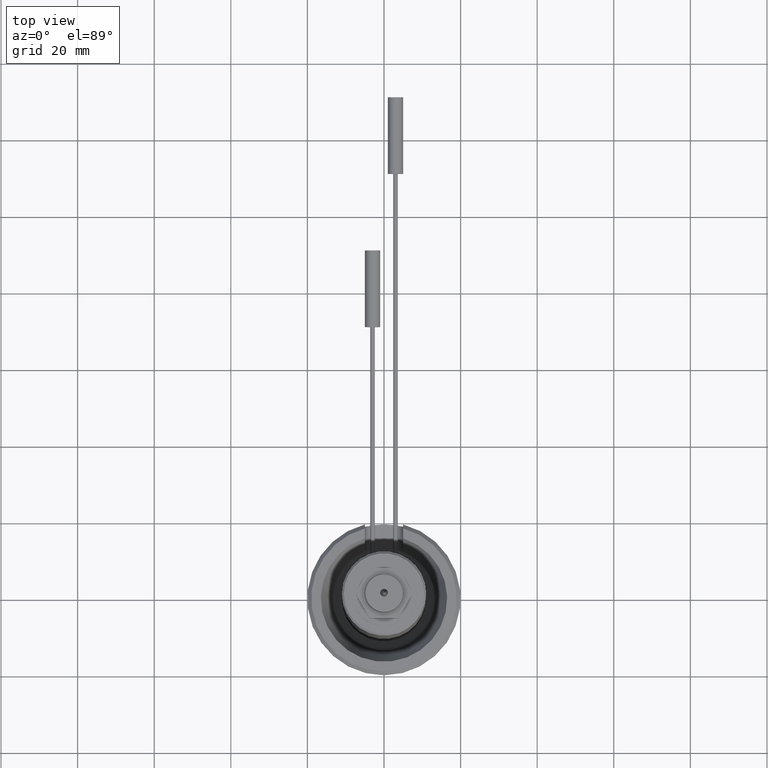
[diagram: clean part render]
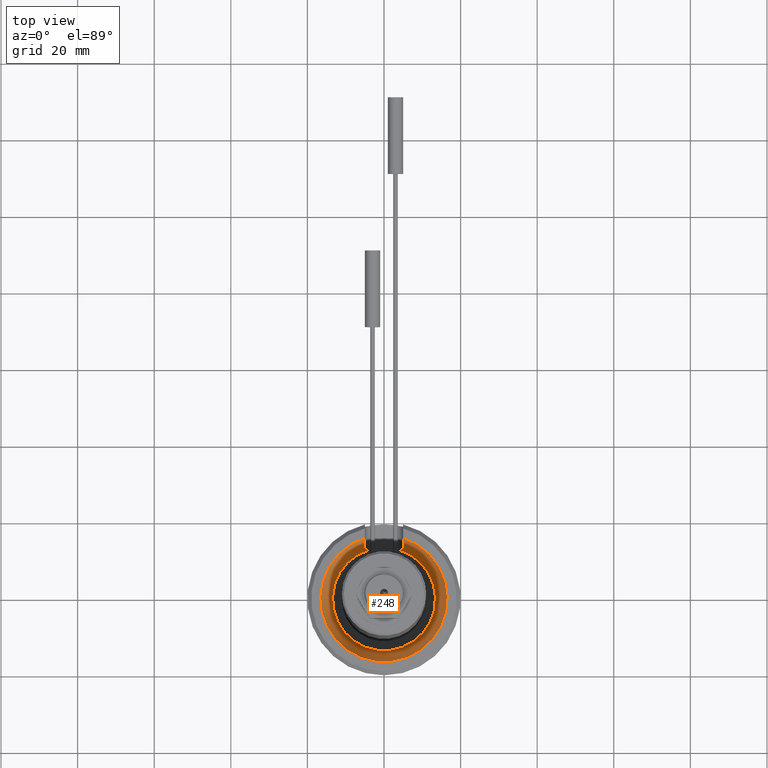
[diagram: same view with one face highlighted and labeled with its STEP entity id]
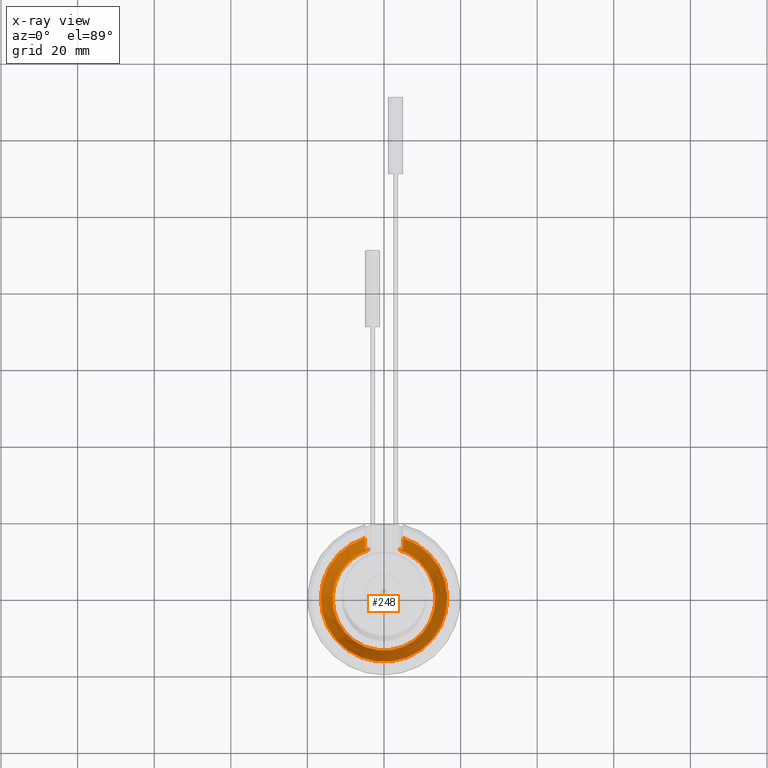
[diagram: x-ray of the same camera — body ghosted, the highlighted face saturated]
A machine part, top view. The second image highlights one B-rep face of the part: STEP entity #248.
The next image is the same camera in x-ray: the body ghosted, the highlighted face saturated — about 0% of this face is hidden behind the body in this view.
In plain terms, the highlighted conical surface has half-angle 18.76 deg.
Its self-contained STEP definition (entity closure, byte-faithful):
#193=FACE_OUTER_BOUND('',#447,.T.);
#248=ADVANCED_FACE('',(#193),#301,.F.);
#301=CONICAL_SURFACE('',#1172,13.4573329734641,18.7599999999998);
#325=B_SPLINE_CURVE_WITH_KNOTS('',3,(#2027,#2028,#2029,#2030),
 .UNSPECIFIED.,.F.,.F.,(4,4),(0.,1.),.UNSPECIFIED.);
#326=B_SPLINE_CURVE_WITH_KNOTS('',3,(#2035,#2036,#2037,#2038),
 .UNSPECIFIED.,.F.,.F.,(4,4),(0.,1.),.UNSPECIFIED.);
#327=B_SPLINE_CURVE_WITH_KNOTS('',3,(#2040,#2041,#2042,#2043,#2044,#2045,
#2046,#2047,#2048,#2049),.UNSPECIFIED.,.F.,.F.,(4,3,3,4),(0.,0.339823540983943,
0.681058204121285,1.),.UNSPECIFIED.);
#328=B_SPLINE_CURVE_WITH_KNOTS('',3,(#2050,#2051,#2052,#2053,#2054,#2055,
#2056,#2057,#2058,#2059),.UNSPECIFIED.,.F.,.F.,(4,3,3,4),(0.,0.323201637820959,
0.646555919093283,1.),.UNSPECIFIED.);
#447=EDGE_LOOP('',(#619,#620,#621,#622,#623,#624));
#619=ORIENTED_EDGE('',*,*,#978,.F.);
#620=ORIENTED_EDGE('',*,*,#979,.T.);
#621=ORIENTED_EDGE('',*,*,#980,.F.);
#622=ORIENTED_EDGE('',*,*,#981,.T.);
#623=ORIENTED_EDGE('',*,*,#976,.T.);
#624=ORIENTED_EDGE('',*,*,#982,.T.);
#854=VERTEX_POINT('',#2010);
#855=VERTEX_POINT('',#2012);
#856=VERTEX_POINT('',#2031);
#857=VERTEX_POINT('',#2032);
#858=VERTEX_POINT('',#2034);
#859=VERTEX_POINT('',#2039);
#976=EDGE_CURVE('',#855,#854,#1080,.T.);
#978=EDGE_CURVE('',#856,#857,#325,.T.);
#979=EDGE_CURVE('',#856,#858,#1081,.T.);
#980=EDGE_CURVE('',#859,#858,#326,.T.);
#981=EDGE_CURVE('',#859,#855,#327,.T.);
#982=EDGE_CURVE('',#854,#857,#328,.T.);
#1080=CIRCLE('',#1169,13.4573329734641);
#1081=CIRCLE('',#1171,16.4996646888082);
#1169=AXIS2_PLACEMENT_3D('',#2011,#1393,#1394);
#1171=AXIS2_PLACEMENT_3D('',#2033,#1397,#1398);
#1172=AXIS2_PLACEMENT_3D('',#2060,#1399,#1400);
#1393=DIRECTION('',(0.,0.,-1.));
#1394=DIRECTION('',(1.,0.,0.));
#1397=DIRECTION('',(0.,0.,1.));
#1398=DIRECTION('',(1.,0.,0.));
#1399=DIRECTION('',(0.,0.,1.));
#1400=DIRECTION('',(1.,0.,2.25986598766589E-16));
#2010=CARTESIAN_POINT('',(-3.72097542149328,12.9326777069301,16.0427162152864));
#2011=CARTESIAN_POINT('',(0.,0.,16.0427162152864));
#2012=CARTESIAN_POINT('',(3.72097542149328,12.9326777069301,16.0427162152864));
#2027=CARTESIAN_POINT('',(-5.,15.7238333380606,25.));
#2028=CARTESIAN_POINT('',(-5.,14.9509270720782,22.8313977173449));
#2029=CARTESIAN_POINT('',(-5.,14.1735049763933,20.6643664506033));
#2030=CARTESIAN_POINT('',(-5.,13.3887916455741,18.5));
#2031=CARTESIAN_POINT('',(-5.,15.7238333380606,25.));
#2032=CARTESIAN_POINT('',(-5.,13.3887916455741,18.5));
#2033=CARTESIAN_POINT('',(0.,0.,25.));
#2034=CARTESIAN_POINT('',(5.,15.7238333380606,25.));
#2035=CARTESIAN_POINT('',(5.,13.3887916455741,18.5));
#2036=CARTESIAN_POINT('',(5.,14.1734998842274,20.6643524055853));
#2037=CARTESIAN_POINT('',(5.,14.9509132169483,22.8313588429463));
#2038=CARTESIAN_POINT('',(5.,15.7238333380606,25.));
#2039=CARTESIAN_POINT('',(5.,13.3887916455741,18.5));
#2040=CARTESIAN_POINT('',(5.,13.3887916455741,18.5));
#2041=CARTESIAN_POINT('',(5.,13.2759832467154,18.1888561666447));
#2042=CARTESIAN_POINT('',(4.95019343195471,13.1781053538942,17.8671666394606));
#2043=CARTESIAN_POINT('',(4.84916539594733,13.1045059535723,17.5607148747392));
#2044=CARTESIAN_POINT('',(4.74787858248229,13.0307180326531,17.2534781515874));
#2045=CARTESIAN_POINT('',(4.59170950224442,12.9795195815167,16.953256218878));
#2046=CARTESIAN_POINT('',(4.39212660040743,12.9526195546608,16.6895496892698));
#2047=CARTESIAN_POINT('',(4.20519581128553,12.9274247949831,16.4425602466746));
#2048=CARTESIAN_POINT('',(3.97539246913384,12.9224518545702,16.2208989260185));
#2049=CARTESIAN_POINT('',(3.72097542149328,12.9326777069301,16.0427162152864));
#2050=CARTESIAN_POINT('',(-3.72097542149328,12.9326777069301,16.0427162152864));
#2051=CARTESIAN_POINT('',(-3.97868984944148,12.9223193220827,16.2232082687571));
#2052=CARTESIAN_POINT('',(-4.21117103456396,12.9275712022819,16.4483798259103));
#2053=CARTESIAN_POINT('',(-4.39947811764517,12.9536234775892,16.6993043669343));
#2054=CARTESIAN_POINT('',(-4.58785706665572,12.9796856955442,16.950324671352));
#2055=CARTESIAN_POINT('',(-4.73700837647282,13.0275616756409,17.2337883429949));
#2056=CARTESIAN_POINT('',(-4.83697079770243,13.0959008858126,17.5245018231777));
#2057=CARTESIAN_POINT('',(-4.94610794272809,13.1705123868117,17.8418974890425));
#2058=CARTESIAN_POINT('',(-5.,13.2715980175315,18.1767609943685));
#2059=CARTESIAN_POINT('',(-5.,13.3887916455741,18.5));
#2060=CARTESIAN_POINT('',(0.,0.,16.0427162152864));